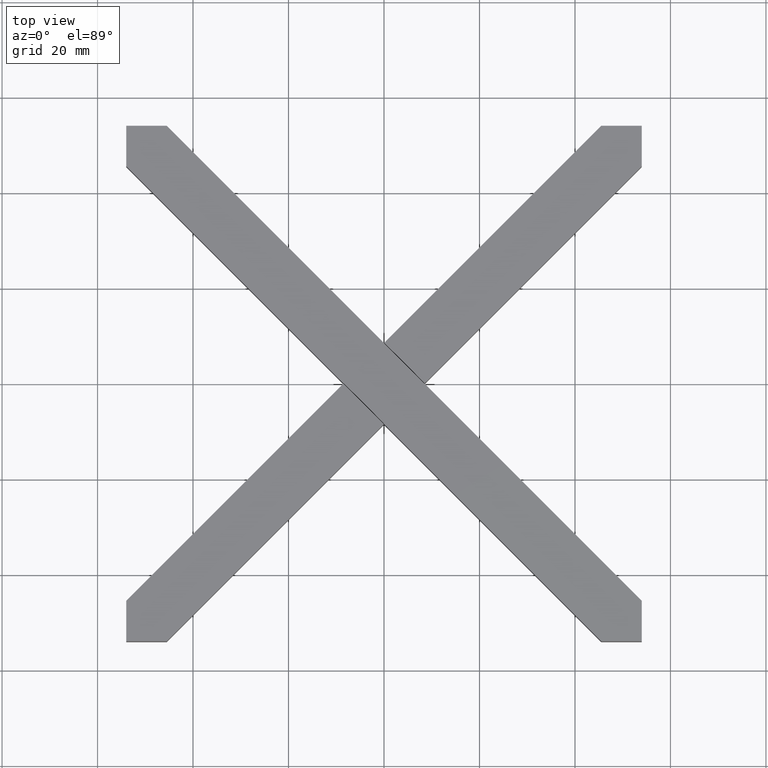
[diagram: clean part render]
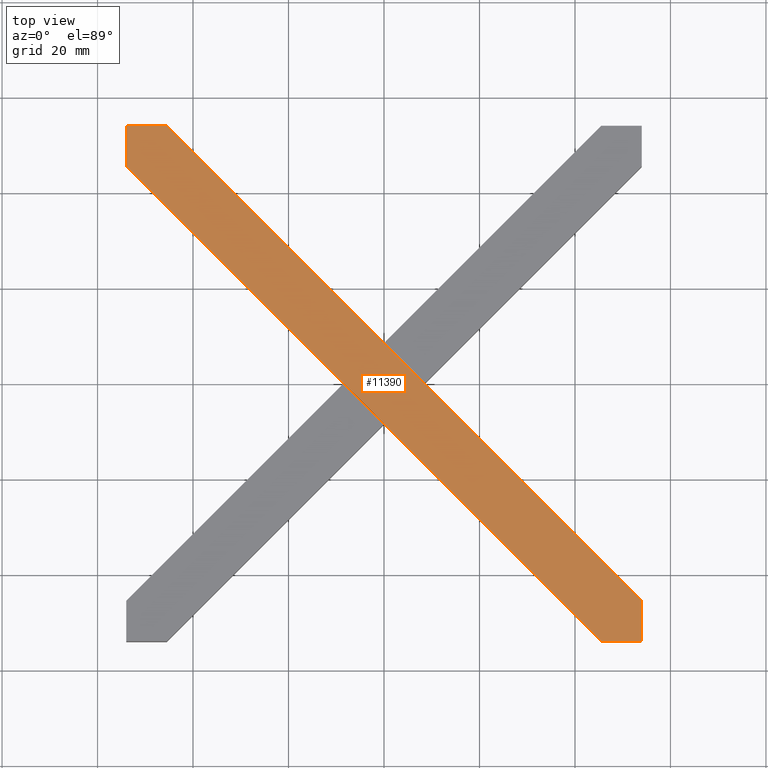
[diagram: same view with one face highlighted and labeled with its STEP entity id]
A machine part, top view. The second image highlights one B-rep face of the part: STEP entity #11390.
In plain terms, the highlighted planar face has unit normal (-0, 0, 1).
Its self-contained STEP definition (entity closure, byte-faithful):
#68 = VECTOR ( 'NONE', #13392, 1000.000000000000000 ) ;
#334 = EDGE_CURVE ( 'NONE', #3018, #7085, #3846, .T. ) ;
#384 = CARTESIAN_POINT ( 'NONE',  ( 8.449926035179235129, -0.03535533905932477378, 12.00000000000000000 ) ) ;
#639 = DIRECTION ( 'NONE',  ( 0.7071067811865392461, 0.7071067811865556774, 0.000000000000000000 ) ) ;
#651 = ORIENTED_EDGE ( 'NONE', *, *, #10034, .F. ) ;
#673 = CARTESIAN_POINT ( 'NONE',  ( -45.51471862576142513, 53.99999999999999289, 12.00000000000000000 ) ) ;
#851 = LINE ( 'NONE', #1523, #6194 ) ;
#1029 = DIRECTION ( 'NONE',  ( -0.7071067811865474617, 0.7071067811865474617, 0.000000000000000000 ) ) ;
#1079 = CARTESIAN_POINT ( 'NONE',  ( -53.99999999999999289, 53.99999999999999289, 12.00000000000000000 ) ) ;
#1131 = VECTOR ( 'NONE', #14282, 1000.000000000000000 ) ;
#1158 = ORIENTED_EDGE ( 'NONE', *, *, #334, .F. ) ;
#1199 = EDGE_CURVE ( 'NONE', #11745, #4253, #6462, .T. ) ;
#1340 = AXIS2_PLACEMENT_3D ( 'NONE', #2039, #11119, #14444 ) ;
#1523 = CARTESIAN_POINT ( 'NONE',  ( -4.242640687119286547, 4.242640687119385134, 12.00000000000000000 ) ) ;
#1537 = CARTESIAN_POINT ( 'NONE',  ( 45.51471862576143224, -54.00000000000000711, 12.00000000000000000 ) ) ;
#2039 = CARTESIAN_POINT ( 'NONE',  ( 0.000000000000000000, 0.000000000000000000, 12.00000000000000000 ) ) ;
#2043 = LINE ( 'NONE', #1079, #68 ) ;
#2221 = CARTESIAN_POINT ( 'NONE',  ( -8.449926035179245787, 0.03535533905932564114, 12.00000000000000000 ) ) ;
#2289 = CARTESIAN_POINT ( 'NONE',  ( 54.00000000000002132, -45.51471862576144645, 12.00000000000000000 ) ) ;
#2508 = ORIENTED_EDGE ( 'NONE', *, *, #10883, .T. ) ;
#2533 = VERTEX_POINT ( 'NONE', #1537 ) ;
#2562 = ORIENTED_EDGE ( 'NONE', *, *, #1199, .T. ) ;
#2671 = ORIENTED_EDGE ( 'NONE', *, *, #14312, .T. ) ;
#2793 = LINE ( 'NONE', #5414, #2959 ) ;
#2959 = VECTOR ( 'NONE', #5370, 1000.000000000000000 ) ;
#3018 = VERTEX_POINT ( 'NONE', #13361 ) ;
#3044 = LINE ( 'NONE', #384, #11041 ) ;
#3069 = LINE ( 'NONE', #8499, #4133 ) ;
#3496 = LINE ( 'NONE', #5523, #9905 ) ;
#3599 = CARTESIAN_POINT ( 'NONE',  ( 54.00000000000002132, -54.00000000000000711, 12.00000000000000000 ) ) ;
#3636 = CARTESIAN_POINT ( 'NONE',  ( 8.449926035179235129, -0.03535533905932477378, 12.00000000000000000 ) ) ;
#3693 = DIRECTION ( 'NONE',  ( 0.7071067811865556774, 0.7071067811865392461, 0.000000000000000000 ) ) ;
#3694 = DIRECTION ( 'NONE',  ( 0.7071067811865474617, -0.7071067811865474617, 0.000000000000000000 ) ) ;
#3842 = VERTEX_POINT ( 'NONE', #9646 ) ;
#3846 = LINE ( 'NONE', #7072, #11141 ) ;
#3966 = VECTOR ( 'NONE', #639, 1000.000000000000114 ) ;
#4133 = VECTOR ( 'NONE', #7677, 1000.000000000000000 ) ;
#4189 = VERTEX_POINT ( 'NONE', #3599 ) ;
#4253 = VERTEX_POINT ( 'NONE', #4313 ) ;
#4313 = CARTESIAN_POINT ( 'NONE',  ( -45.51471862576142513, 53.99999999999999289, 12.00000000000000000 ) ) ;
#4596 = DIRECTION ( 'NONE',  ( -0.7071067811865392461, -0.7071067811865556774, -0.000000000000000000 ) ) ;
#4939 = EDGE_CURVE ( 'NONE', #6505, #6003, #8858, .T. ) ;
#5084 = VERTEX_POINT ( 'NONE', #2221 ) ;
#5346 = CARTESIAN_POINT ( 'NONE',  ( -53.99999999999999289, 53.99999999999999289, 12.00000000000000000 ) ) ;
#5370 = DIRECTION ( 'NONE',  ( -0.7071067811865477948, 0.7071067811865473507, -0.000000000000000000 ) ) ;
#5412 = PLANE ( 'NONE',  #1340 ) ;
#5414 = CARTESIAN_POINT ( 'NONE',  ( 8.485281374238560659, -1.084202172485504434E-14, 12.00000000000000000 ) ) ;
#5523 = CARTESIAN_POINT ( 'NONE',  ( -53.99999999999999289, 45.51471862576142513, 12.00000000000000000 ) ) ;
#5603 = ORIENTED_EDGE ( 'NONE', *, *, #8503, .T. ) ;
#5652 = CARTESIAN_POINT ( 'NONE',  ( 0.03535533905931002863, -8.449926035179231576, 12.00000000000000000 ) ) ;
#5699 = EDGE_CURVE ( 'NONE', #11745, #12008, #851, .T. ) ;
#6003 = VERTEX_POINT ( 'NONE', #6884 ) ;
#6063 = ORIENTED_EDGE ( 'NONE', *, *, #7496, .T. ) ;
#6095 = VECTOR ( 'NONE', #11944, 1000.000000000000000 ) ;
#6194 = VECTOR ( 'NONE', #14072, 1000.000000000000114 ) ;
#6273 = CARTESIAN_POINT ( 'NONE',  ( 45.51471862576143224, -54.00000000000000711, 12.00000000000000000 ) ) ;
#6462 = LINE ( 'NONE', #673, #6095 ) ;
#6468 = CARTESIAN_POINT ( 'NONE',  ( -8.485281374238573093, -2.378468515890075352E-15, 12.00000000000000000 ) ) ;
#6505 = VERTEX_POINT ( 'NONE', #12999 ) ;
#6677 = DIRECTION ( 'NONE',  ( 0.7071067811865474617, -0.7071067811865475727, 0.000000000000000000 ) ) ;
#6733 = EDGE_CURVE ( 'NONE', #7415, #3842, #2793, .T. ) ;
#6884 = CARTESIAN_POINT ( 'NONE',  ( -53.99999999999999289, 45.51471862576142513, 12.00000000000000000 ) ) ;
#7007 = LINE ( 'NONE', #3636, #3966 ) ;
#7072 = CARTESIAN_POINT ( 'NONE',  ( 4.242640687119269671, -4.242640687119368259, 12.00000000000000000 ) ) ;
#7085 = VERTEX_POINT ( 'NONE', #7583 ) ;
#7175 = CARTESIAN_POINT ( 'NONE',  ( -1.564418524095811927E-15, -8.485281374238574870, 12.00000000000000000 ) ) ;
#7336 = FACE_OUTER_BOUND ( 'NONE', #11877, .T. ) ;
#7415 = VERTEX_POINT ( 'NONE', #2289 ) ;
#7496 = EDGE_CURVE ( 'NONE', #6003, #9285, #3496, .T. ) ;
#7534 = LINE ( 'NONE', #6273, #1131 ) ;
#7566 = CARTESIAN_POINT ( 'NONE',  ( -0.03535533905933258003, 8.449926035179242234, 12.00000000000000000 ) ) ;
#7583 = CARTESIAN_POINT ( 'NONE',  ( 0.03535533905931007720, -8.449926035179228023, 12.00000000000000000 ) ) ;
#7677 = DIRECTION ( 'NONE',  ( -0.000000000000000000, 1.000000000000000000, -0.000000000000000000 ) ) ;
#7739 = ORIENTED_EDGE ( 'NONE', *, *, #13404, .F. ) ;
#7909 = EDGE_CURVE ( 'NONE', #7085, #5084, #10585, .T. ) ;
#8022 = CARTESIAN_POINT ( 'NONE',  ( 8.449926035179235129, -0.03535533905932477378, 12.00000000000000000 ) ) ;
#8050 = EDGE_CURVE ( 'NONE', #5084, #9285, #14486, .T. ) ;
#8219 = VERTEX_POINT ( 'NONE', #8022 ) ;
#8315 = ORIENTED_EDGE ( 'NONE', *, *, #6733, .T. ) ;
#8499 = CARTESIAN_POINT ( 'NONE',  ( 54.00000000000002132, -45.51471862576144645, 12.00000000000000000 ) ) ;
#8503 = EDGE_CURVE ( 'NONE', #3018, #2533, #13940, .T. ) ;
#8858 = LINE ( 'NONE', #5346, #13477 ) ;
#9285 = VERTEX_POINT ( 'NONE', #6468 ) ;
#9345 = EDGE_CURVE ( 'NONE', #4253, #6505, #2043, .T. ) ;
#9646 = CARTESIAN_POINT ( 'NONE',  ( 8.485281374238553553, -4.079310673976710433E-15, 12.00000000000000000 ) ) ;
#9704 = VECTOR ( 'NONE', #4596, 1000.000000000000114 ) ;
#9905 = VECTOR ( 'NONE', #6677, 1000.000000000000000 ) ;
#10034 = EDGE_CURVE ( 'NONE', #8219, #3842, #7007, .T. ) ;
#10585 = LINE ( 'NONE', #5652, #11807 ) ;
#10673 = ORIENTED_EDGE ( 'NONE', *, *, #8050, .F. ) ;
#10883 = EDGE_CURVE ( 'NONE', #4189, #7415, #3069, .T. ) ;
#10960 = CARTESIAN_POINT ( 'NONE',  ( -5.847915467843689541E-15, 8.485281374238567764, 12.00000000000000000 ) ) ;
#11041 = VECTOR ( 'NONE', #12039, 1000.000000000000114 ) ;
#11119 = DIRECTION ( 'NONE',  ( -0.000000000000000000, 0.000000000000000000, 1.000000000000000000 ) ) ;
#11141 = VECTOR ( 'NONE', #3693, 1000.000000000000114 ) ;
#11390 = ADVANCED_FACE ( 'NONE', ( #7336 ), #5412, .T. ) ;
#11540 = ORIENTED_EDGE ( 'NONE', *, *, #7909, .F. ) ;
#11555 = CARTESIAN_POINT ( 'NONE',  ( -8.520636713297900400, -0.03535533905932911058, 12.00000000000000000 ) ) ;
#11745 = VERTEX_POINT ( 'NONE', #10960 ) ;
#11807 = VECTOR ( 'NONE', #1029, 1000.000000000000114 ) ;
#11877 = EDGE_LOOP ( 'NONE', ( #651, #7739, #14661, #2562, #12724, #12413, #6063, #10673, #11540, #1158, #5603, #2671, #2508, #8315 ) ) ;
#11944 = DIRECTION ( 'NONE',  ( -0.7071067811865474617, 0.7071067811865475727, -0.000000000000000000 ) ) ;
#12008 = VERTEX_POINT ( 'NONE', #7566 ) ;
#12039 = DIRECTION ( 'NONE',  ( 0.7071067811865474617, -0.7071067811865474617, -0.000000000000000000 ) ) ;
#12413 = ORIENTED_EDGE ( 'NONE', *, *, #4939, .T. ) ;
#12724 = ORIENTED_EDGE ( 'NONE', *, *, #9345, .T. ) ;
#12877 = VECTOR ( 'NONE', #3694, 1000.000000000000114 ) ;
#12999 = CARTESIAN_POINT ( 'NONE',  ( -53.99999999999999289, 53.99999999999999289, 12.00000000000000000 ) ) ;
#13361 = CARTESIAN_POINT ( 'NONE',  ( -1.801130859041544241E-14, -8.485281374238557106, 12.00000000000000000 ) ) ;
#13392 = DIRECTION ( 'NONE',  ( -1.000000000000000000, -0.000000000000000000, -0.000000000000000000 ) ) ;
#13404 = EDGE_CURVE ( 'NONE', #12008, #8219, #3044, .T. ) ;
#13477 = VECTOR ( 'NONE', #14319, 1000.000000000000000 ) ;
#13940 = LINE ( 'NONE', #7175, #12877 ) ;
#14072 = DIRECTION ( 'NONE',  ( -0.7071067811865556774, -0.7071067811865392461, 0.000000000000000000 ) ) ;
#14282 = DIRECTION ( 'NONE',  ( 1.000000000000000000, 0.000000000000000000, 0.000000000000000000 ) ) ;
#14312 = EDGE_CURVE ( 'NONE', #2533, #4189, #7534, .T. ) ;
#14319 = DIRECTION ( 'NONE',  ( 0.000000000000000000, -1.000000000000000000, 0.000000000000000000 ) ) ;
#14444 = DIRECTION ( 'NONE',  ( 1.000000000000000000, 0.000000000000000000, 0.000000000000000000 ) ) ;
#14486 = LINE ( 'NONE', #11555, #9704 ) ;
#14661 = ORIENTED_EDGE ( 'NONE', *, *, #5699, .F. ) ;